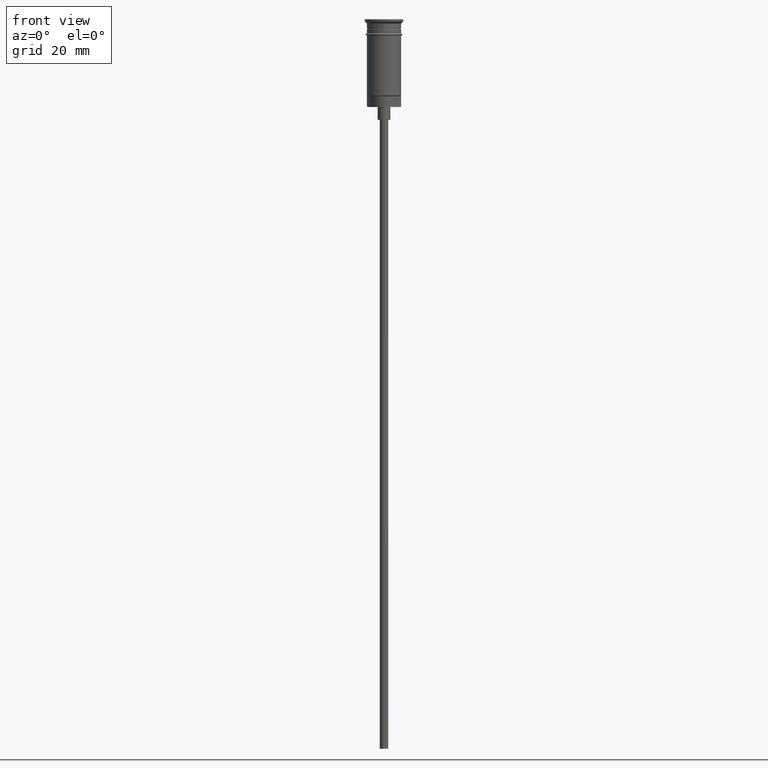
[diagram: clean part render]
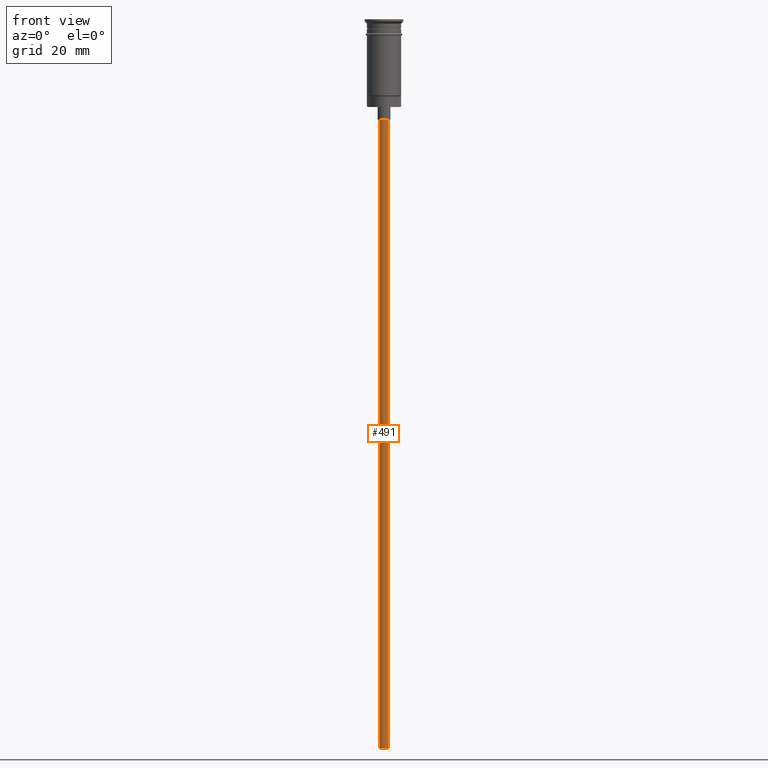
[diagram: same view with one face highlighted and labeled with its STEP entity id]
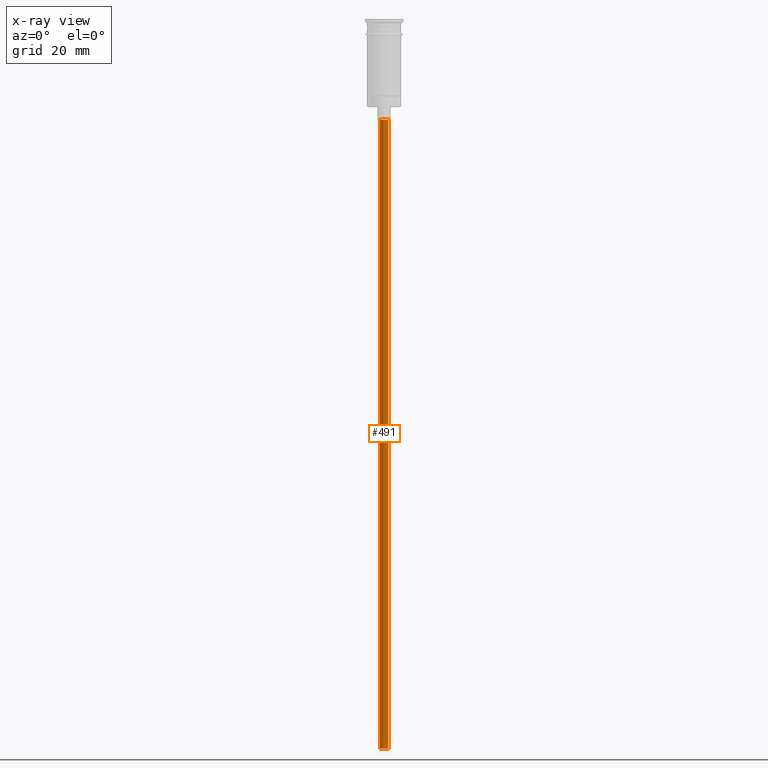
[diagram: x-ray of the same camera — body ghosted, the highlighted face saturated]
A machine part, front view. The second image highlights one B-rep face of the part: STEP entity #491.
The next image is the same camera in x-ray: the body ghosted, the highlighted face saturated — about 0% of this face is hidden behind the body in this view.
In plain terms, the highlighted cylindrical surface (edge-blend (fillet) strip) has radius 1 mm, axis along (-0, -0, 1).
Its self-contained STEP definition (entity closure, byte-faithful):
#38 = AXIS2_PLACEMENT_3D ( 'NONE', #675, #1514, #414 ) ;
#45 = DIRECTION ( 'NONE',  ( -1.000000000000000000, 0.000000000000000000, 0.000000000000000000 ) ) ;
#61 = DIRECTION ( 'NONE',  ( 0.000000000000000000, 0.000000000000000000, -1.000000000000000000 ) ) ;
#85 = CARTESIAN_POINT ( 'NONE',  ( -0.9999999999999997780, 1.224646799147352961E-16, -23.49999999999999645 ) ) ;
#95 = CARTESIAN_POINT ( 'NONE',  ( 0.000000000000000000, 0.000000000000000000, -170.4999999999999716 ) ) ;
#126 = EDGE_LOOP ( 'NONE', ( #347, #201, #1101, #151 ) ) ;
#151 = ORIENTED_EDGE ( 'NONE', *, *, #1387, .T. ) ;
#201 = ORIENTED_EDGE ( 'NONE', *, *, #685, .F. ) ;
#222 = AXIS2_PLACEMENT_3D ( 'NONE', #95, #937, #600 ) ;
#347 = ORIENTED_EDGE ( 'NONE', *, *, #635, .F. ) ;
#414 = DIRECTION ( 'NONE',  ( 1.000000000000000000, 0.000000000000000000, 0.000000000000000000 ) ) ;
#449 = LINE ( 'NONE', #855, #794 ) ;
#488 = VERTEX_POINT ( 'NONE', #1274 ) ;
#491 = ADVANCED_FACE ( 'NONE', ( #1159 ), #659, .T. ) ;
#600 = DIRECTION ( 'NONE',  ( -1.000000000000000000, 0.000000000000000000, 0.000000000000000000 ) ) ;
#608 = CIRCLE ( 'NONE', #1325, 0.9999999999999997780 ) ;
#635 = EDGE_CURVE ( 'NONE', #1094, #1350, #1323, .T. ) ;
#659 = CYLINDRICAL_SURFACE ( 'NONE', #38, 0.9999999999999997780 ) ;
#675 = CARTESIAN_POINT ( 'NONE',  ( 0.000000000000000000, 0.000000000000000000, -170.4999999999999716 ) ) ;
#685 = EDGE_CURVE ( 'NONE', #1105, #1094, #691, .T. ) ;
#691 = CIRCLE ( 'NONE', #222, 0.9999999999999997780 ) ;
#716 = EDGE_CURVE ( 'NONE', #1105, #488, #449, .T. ) ;
#794 = VECTOR ( 'NONE', #1056, 1000.000000000000000 ) ;
#826 = CARTESIAN_POINT ( 'NONE',  ( -0.9999999999999997780, 1.224646799147352961E-16, -170.4999999999999716 ) ) ;
#855 = CARTESIAN_POINT ( 'NONE',  ( 0.9999999999999997780, 0.000000000000000000, -170.4999999999999716 ) ) ;
#937 = DIRECTION ( 'NONE',  ( 0.000000000000000000, 0.000000000000000000, -1.000000000000000000 ) ) ;
#1053 = VECTOR ( 'NONE', #1066, 1000.000000000000000 ) ;
#1056 = DIRECTION ( 'NONE',  ( -0.000000000000000000, -0.000000000000000000, 1.000000000000000000 ) ) ;
#1066 = DIRECTION ( 'NONE',  ( -0.000000000000000000, -0.000000000000000000, 1.000000000000000000 ) ) ;
#1084 = CARTESIAN_POINT ( 'NONE',  ( 0.9999999999999997780, 0.000000000000000000, -170.4999999999999716 ) ) ;
#1094 = VERTEX_POINT ( 'NONE', #826 ) ;
#1101 = ORIENTED_EDGE ( 'NONE', *, *, #716, .T. ) ;
#1105 = VERTEX_POINT ( 'NONE', #1084 ) ;
#1159 = FACE_OUTER_BOUND ( 'NONE', #126, .T. ) ;
#1180 = CARTESIAN_POINT ( 'NONE',  ( 0.000000000000000000, 0.000000000000000000, -23.49999999999999645 ) ) ;
#1274 = CARTESIAN_POINT ( 'NONE',  ( 0.9999999999999997780, 0.000000000000000000, -23.49999999999999645 ) ) ;
#1323 = LINE ( 'NONE', #1463, #1053 ) ;
#1325 = AXIS2_PLACEMENT_3D ( 'NONE', #1180, #61, #45 ) ;
#1350 = VERTEX_POINT ( 'NONE', #85 ) ;
#1387 = EDGE_CURVE ( 'NONE', #488, #1350, #608, .T. ) ;
#1463 = CARTESIAN_POINT ( 'NONE',  ( -0.9999999999999997780, 1.224646799147352961E-16, -170.4999999999999716 ) ) ;
#1514 = DIRECTION ( 'NONE',  ( -0.000000000000000000, -0.000000000000000000, 1.000000000000000000 ) ) ;